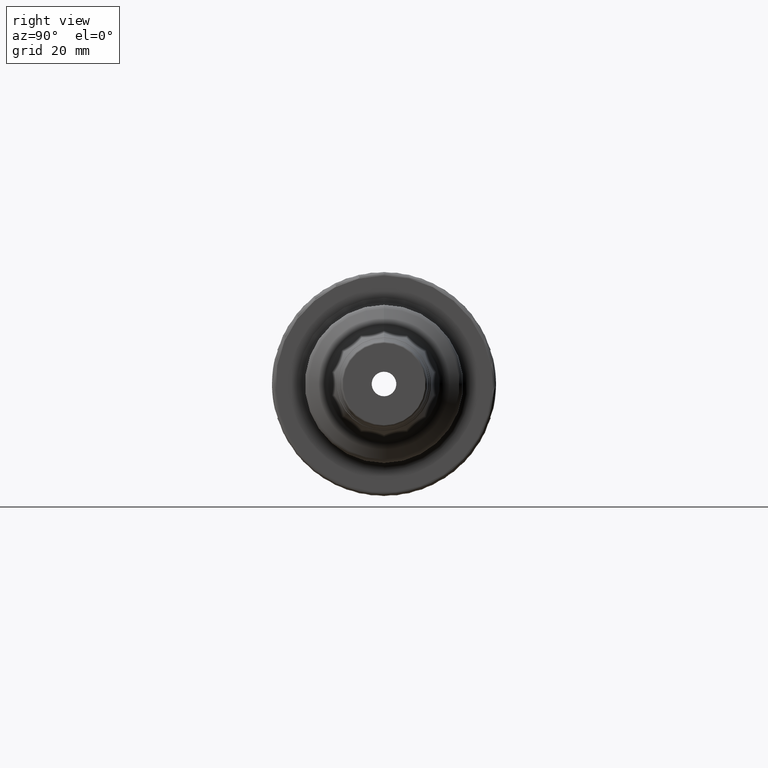
[diagram: clean part render]
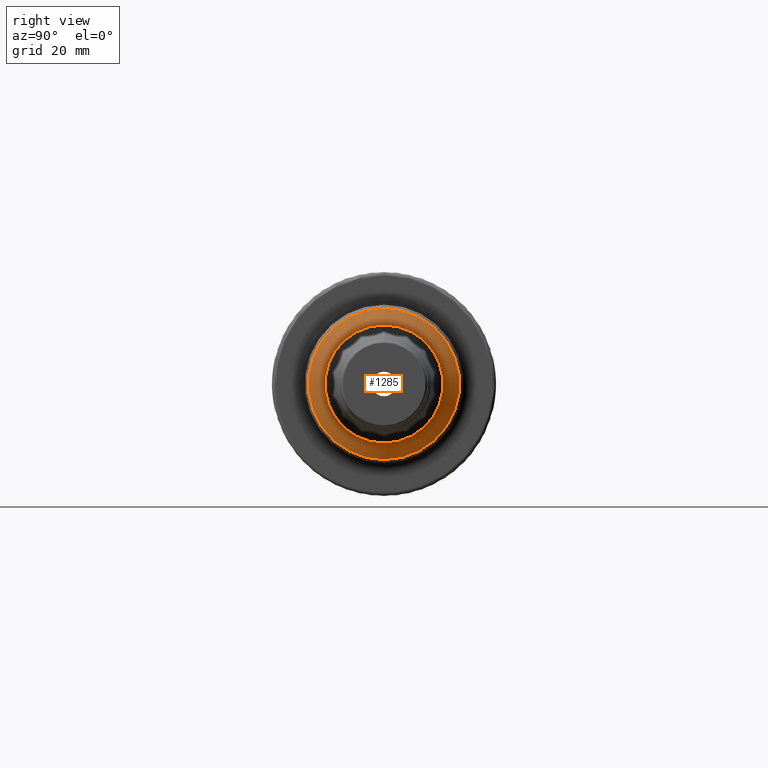
[diagram: same view with one face highlighted and labeled with its STEP entity id]
A machine part, right view. The second image highlights one B-rep face of the part: STEP entity #1285.
In plain terms, the highlighted conical surface has half-angle 60 deg.
Its self-contained STEP definition (entity closure, byte-faithful):
#106=LINE('',#2056,#177);
#177=VECTOR('',#1662,18.9592722749064);
#248=CONICAL_SURFACE('',#1422,18.9592722749064,1.0471975511966);
#281=FACE_OUTER_BOUND('',#365,.T.);
#365=EDGE_LOOP('',(#927,#928,#929,#930));
#462=CIRCLE('',#1420,16.6089714078457);
#464=CIRCLE('',#1423,21.25);
#548=VERTEX_POINT('',#2051);
#549=VERTEX_POINT('',#2055);
#688=EDGE_CURVE('',#548,#548,#462,.T.);
#690=EDGE_CURVE('',#548,#549,#106,.T.);
#691=EDGE_CURVE('',#549,#549,#464,.T.);
#927=ORIENTED_EDGE('',*,*,#688,.F.);
#928=ORIENTED_EDGE('',*,*,#690,.T.);
#929=ORIENTED_EDGE('',*,*,#691,.F.);
#930=ORIENTED_EDGE('',*,*,#690,.F.);
#1285=ADVANCED_FACE('',(#281),#248,.T.);
#1420=AXIS2_PLACEMENT_3D('',#2052,#1656,#1657);
#1422=AXIS2_PLACEMENT_3D('',#2054,#1660,#1661);
#1423=AXIS2_PLACEMENT_3D('',#2057,#1663,#1664);
#1656=DIRECTION('center_axis',(1.,0.,0.));
#1657=DIRECTION('ref_axis',(0.,1.48425225637462E-32,1.));
#1660=DIRECTION('center_axis',(-1.,0.,0.));
#1661=DIRECTION('ref_axis',(0.,0.,-1.));
#1662=DIRECTION('',(-0.499999999999999,-1.06057523872491E-16,0.866025403784439));
#1663=DIRECTION('center_axis',(-1.,0.,0.));
#1664=DIRECTION('ref_axis',(0.,0.,1.));
#2051=CARTESIAN_POINT('',(49.4570443003616,-2.03401236717482E-15,16.6089714078457));
#2052=CARTESIAN_POINT('Origin',(49.4570443003616,-2.03401236717482E-15,
0.));
#2054=CARTESIAN_POINT('Origin',(48.1000974620875,0.,0.));
#2055=CARTESIAN_POINT('',(46.7775451933646,-2.60237444818813E-15,21.25));
#2056=CARTESIAN_POINT('',(48.1000974620875,-2.32184121056273E-15,18.9592722749064));
#2057=CARTESIAN_POINT('Origin',(46.7775451933646,-2.60237444818813E-15,
0.));